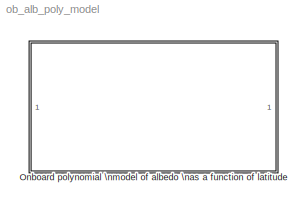
MODEL ob_alb_poly_model
KIND library
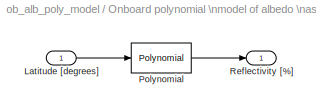
BLOCK [SubSystem] Onboard polynomial \nmodel of albedo \nas a function of latitude
  MaskEnableString = on
  MaskIconFrame = on
  MaskIconOpaque = on
  MaskIconRotate = none
  MaskIconUnits = autoscale
  MaskInitialization = alb_poly_coef = ob_alb_poly(poly_order);
  MaskPromptString = Order of polynomial fitted
  MaskStyleString = edit
  MaskToolTipString = on
  MaskTunableValueString = on
  MaskValueString = 2
  MaskVariables = poly_order=@1;
  MaskVisibilityString = on
  MinAlgLoopOccurrences = off
  Ports = [1, 1]
  RTWSystemCode = Auto
  TreatAsAtomicUnit = off
BLOCK [Inport] Onboard polynomial \nmodel of albedo \nas a function of latitude/Latitude [degrees]
  IconDisplay = Port number
  LatchInput = off
  Port = 1
BLOCK [Reference] Onboard polynomial \nmodel of albedo \nas a function of latitude/Polynomial  REF=simulink/Math\nOperations/Polynomial
  Ports = [1, 1]
  SourceBlock = simulink/Math\nOperations/Polynomial
  SourceType = Polyval
  coefs = alb_poly_coef
BLOCK [Outport] Onboard polynomial \nmodel of albedo \nas a function of latitude/Reflectivity [%]
  BusOutputAsStruct = off
  IconDisplay = Port number
LINE Onboard polynomial \nmodel of albedo \nas a function of latitude/Latitude [degrees]:1 -> Onboard polynomial \nmodel of albedo \nas a function of latitude/Polynomial:1
LINE Onboard polynomial \nmodel of albedo \nas a function of latitude/Polynomial:1 -> Onboard polynomial \nmodel of albedo \nas a function of latitude/Reflectivity [%]:1
